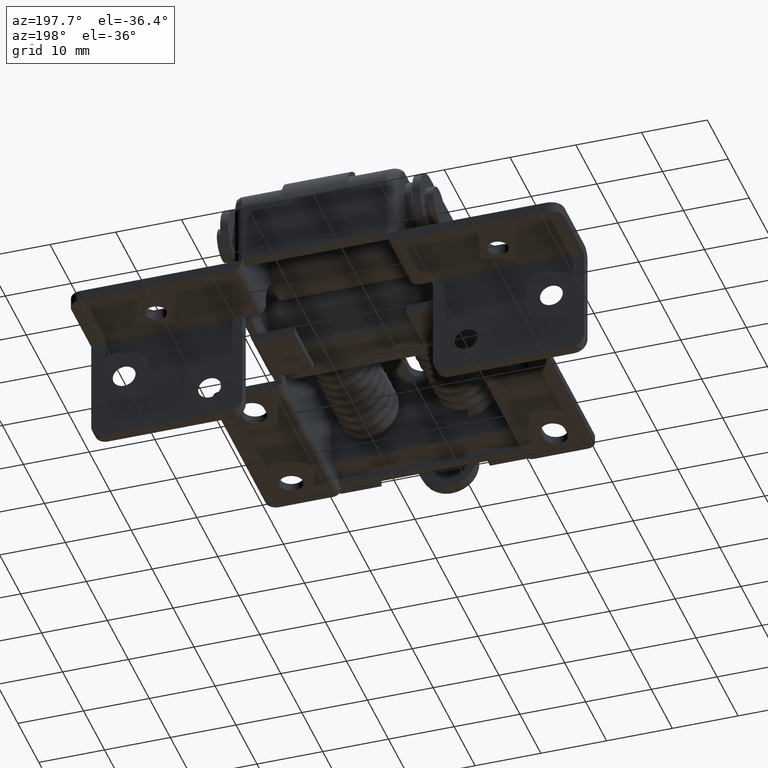
[diagram: clean part render]
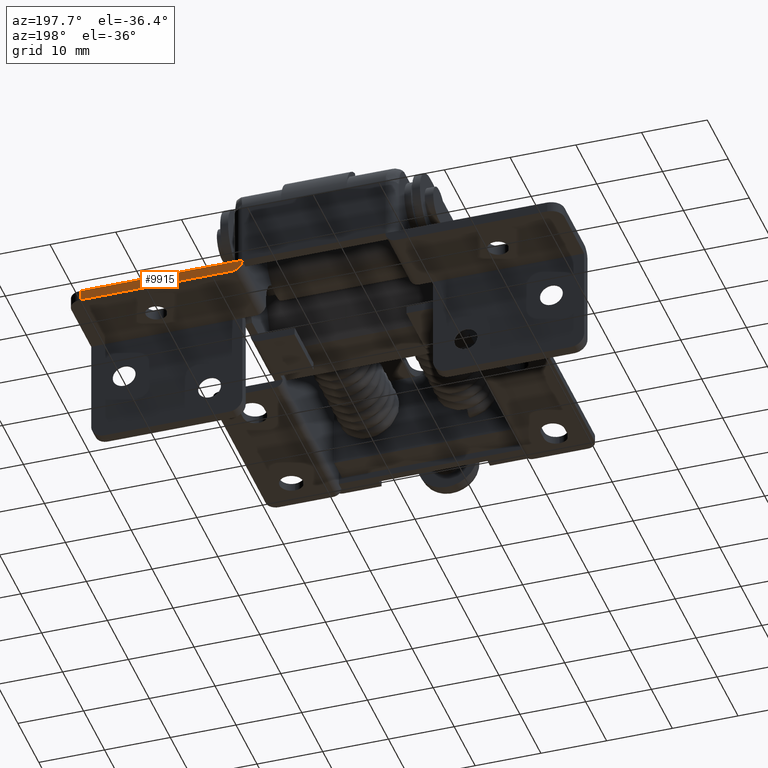
[diagram: same view with one face highlighted and labeled with its STEP entity id]
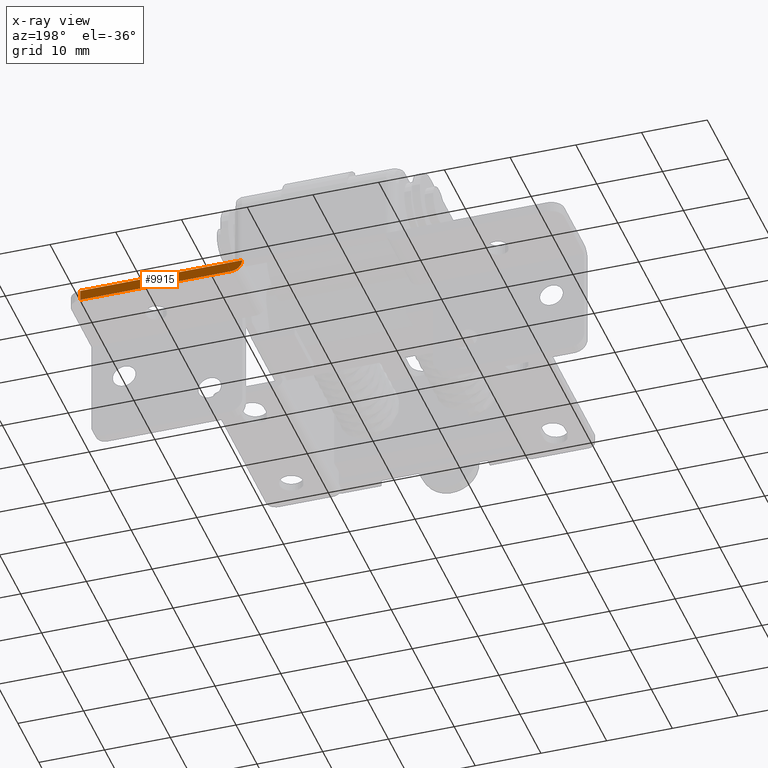
[diagram: x-ray of the same camera — body ghosted, the highlighted face saturated]
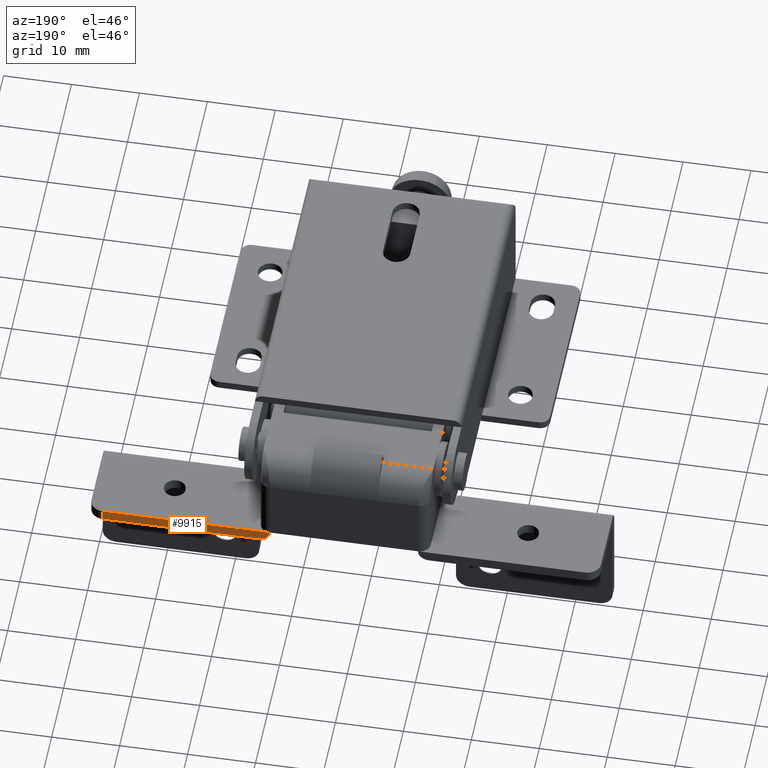
[diagram: same view with one face highlighted and labeled with its STEP entity id]
A machine part, auxiliary view. The second image highlights one B-rep face of the part: STEP entity #9915.
The next image is the same camera in x-ray: the body ghosted, the highlighted face saturated — about 0% of this face is hidden behind the body in this view.
A second angle (auxiliary view) of the same face is appended — the face is thin or edge-on in the first view.
In plain terms, the highlighted planar face has unit normal (0, -1, -0).
Its self-contained STEP definition (entity closure, byte-faithful):
#155 = AXIS2_PLACEMENT_3D ( 'NONE', #4501, #10484, #5332 ) ;
#328 = EDGE_CURVE ( 'NONE', #3423, #6993, #3605, .T. ) ;
#434 = LINE ( 'NONE', #3514, #4654 ) ;
#1079 = VECTOR ( 'NONE', #4762, 1000.000000000000000 ) ;
#1512 = CARTESIAN_POINT ( 'NONE',  ( -35.50000000000000700, 0.0000000000000000000, 0.0000000000000000000 ) ) ;
#1913 = VERTEX_POINT ( 'NONE', #8704 ) ;
#1935 = PLANE ( 'NONE',  #2427 ) ;
#2427 = AXIS2_PLACEMENT_3D ( 'NONE', #10441, #2783, #8770 ) ;
#2783 = DIRECTION ( 'NONE',  ( 0.0000000000000000000, -1.000000000000000000, 0.0000000000000000000 ) ) ;
#3175 = FACE_OUTER_BOUND ( 'NONE', #4603, .T. ) ;
#3423 = VERTEX_POINT ( 'NONE', #1512 ) ;
#3471 = CARTESIAN_POINT ( 'NONE',  ( -37.50000000000000700, 0.0000000000000000000, 1.600000000000000100 ) ) ;
#3514 = CARTESIAN_POINT ( 'NONE',  ( -35.50000000000000700, 0.0000000000000000000, 1.600000000000000100 ) ) ;
#3605 = LINE ( 'NONE', #6434, #1079 ) ;
#4160 = VECTOR ( 'NONE', #4322, 1000.000000000000000 ) ;
#4171 = CIRCLE ( 'NONE', #155, 1.600000000000000100 ) ;
#4322 = DIRECTION ( 'NONE',  ( 1.000000000000000000, 0.0000000000000000000, 0.0000000000000000000 ) ) ;
#4501 = CARTESIAN_POINT ( 'NONE',  ( -12.50000000000000000, 0.0000000000000000000, -4.503609024169577900E-017 ) ) ;
#4603 = EDGE_LOOP ( 'NONE', ( #7163, #10167, #5175, #9587 ) ) ;
#4654 = VECTOR ( 'NONE', #8652, 1000.000000000000000 ) ;
#4762 = DIRECTION ( 'NONE',  ( 1.000000000000000000, 0.0000000000000000000, 0.0000000000000000000 ) ) ;
#4894 = CARTESIAN_POINT ( 'NONE',  ( -10.90000000000000000, 0.0000000000000000000, 0.0000000000000000000 ) ) ;
#5175 = ORIENTED_EDGE ( 'NONE', *, *, #6117, .T. ) ;
#5332 = DIRECTION ( 'NONE',  ( 0.0000000000000000000, 0.0000000000000000000, -1.000000000000000000 ) ) ;
#5582 = EDGE_CURVE ( 'NONE', #1913, #6993, #4171, .T. ) ;
#6117 = EDGE_CURVE ( 'NONE', #7530, #1913, #8718, .T. ) ;
#6434 = CARTESIAN_POINT ( 'NONE',  ( -37.50000000000000700, 0.0000000000000000000, 0.0000000000000000000 ) ) ;
#6993 = VERTEX_POINT ( 'NONE', #4894 ) ;
#7163 = ORIENTED_EDGE ( 'NONE', *, *, #328, .F. ) ;
#7196 = CARTESIAN_POINT ( 'NONE',  ( -35.50000000000000700, 0.0000000000000000000, 1.600000000000000100 ) ) ;
#7530 = VERTEX_POINT ( 'NONE', #7196 ) ;
#8333 = EDGE_CURVE ( 'NONE', #3423, #7530, #434, .T. ) ;
#8652 = DIRECTION ( 'NONE',  ( 0.0000000000000000000, 0.0000000000000000000, 1.000000000000000000 ) ) ;
#8704 = CARTESIAN_POINT ( 'NONE',  ( -12.50000000000000000, 0.0000000000000000000, 1.600000000000000100 ) ) ;
#8718 = LINE ( 'NONE', #3471, #4160 ) ;
#8770 = DIRECTION ( 'NONE',  ( 0.0000000000000000000, -0.0000000000000000000, -1.000000000000000000 ) ) ;
#9587 = ORIENTED_EDGE ( 'NONE', *, *, #5582, .T. ) ;
#9915 = ADVANCED_FACE ( 'NONE', ( #3175 ), #1935, .F. ) ;
#10167 = ORIENTED_EDGE ( 'NONE', *, *, #8333, .T. ) ;
#10441 = CARTESIAN_POINT ( 'NONE',  ( 12.50000000000000000, 0.0000000000000000000, 0.0000000000000000000 ) ) ;
#10484 = DIRECTION ( 'NONE',  ( -0.0000000000000000000, 1.000000000000000000, -0.0000000000000000000 ) ) ;